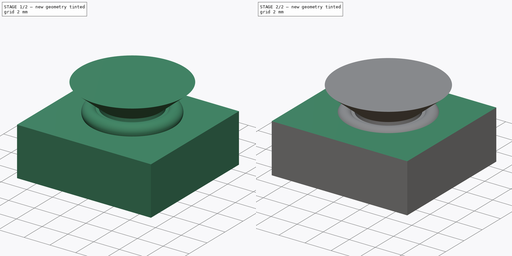
[diagram: build sequence overview — one tinted view per stage of 2, left to right]
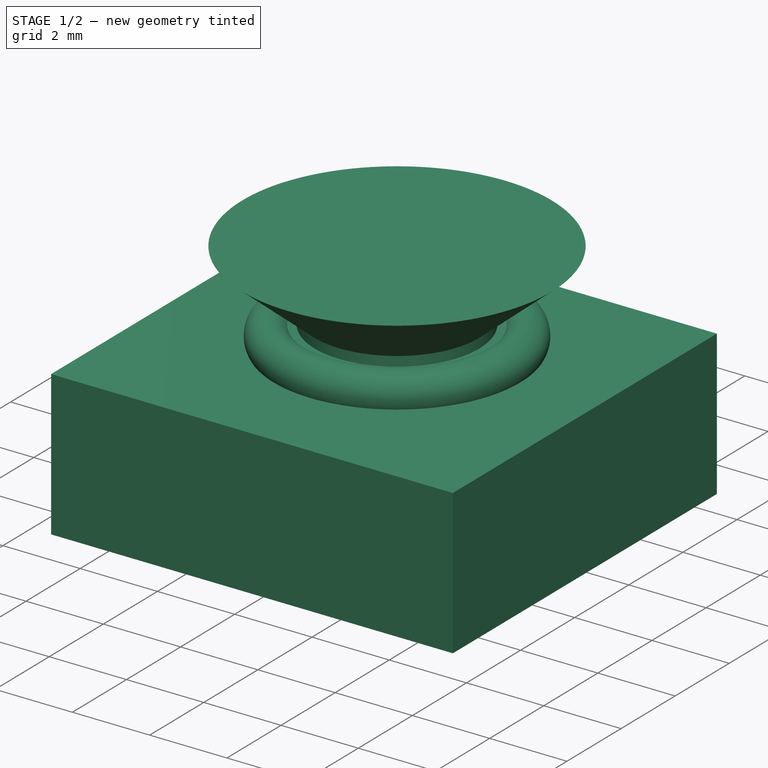
[diagram: stage 1 of 2 — iso view after this stage's code; geometry added in this stage tinted green]
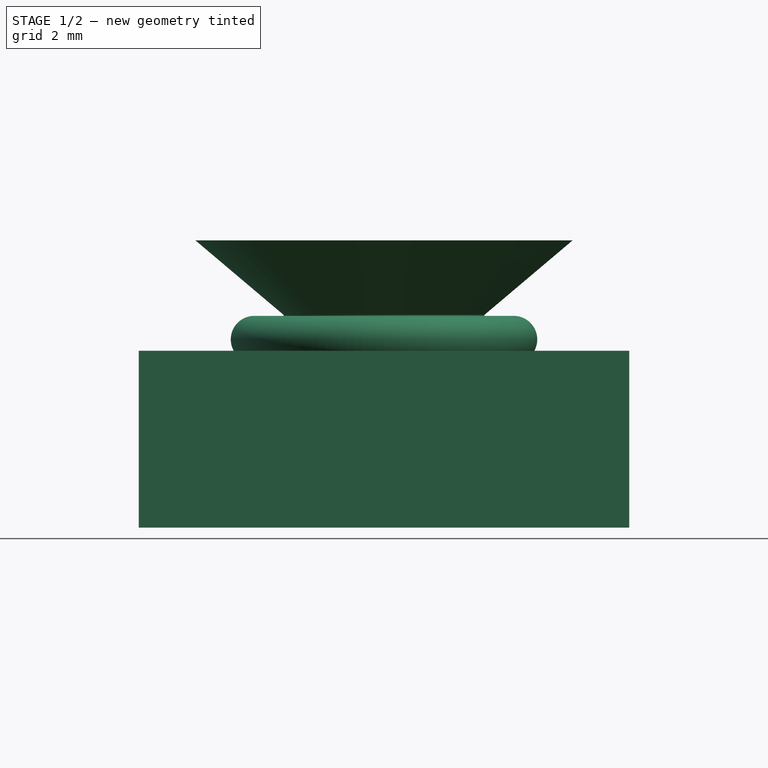
[diagram: stage 1 of 2 — front view after this stage's code; geometry added in this stage tinted green]
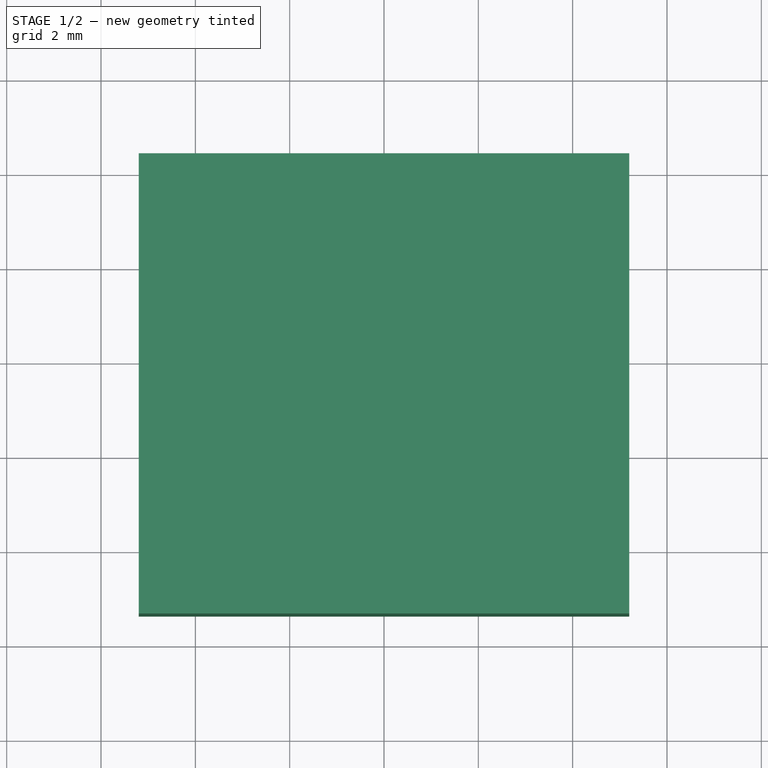
[diagram: stage 1 of 2 — top view after this stage's code; geometry added in this stage tinted green]
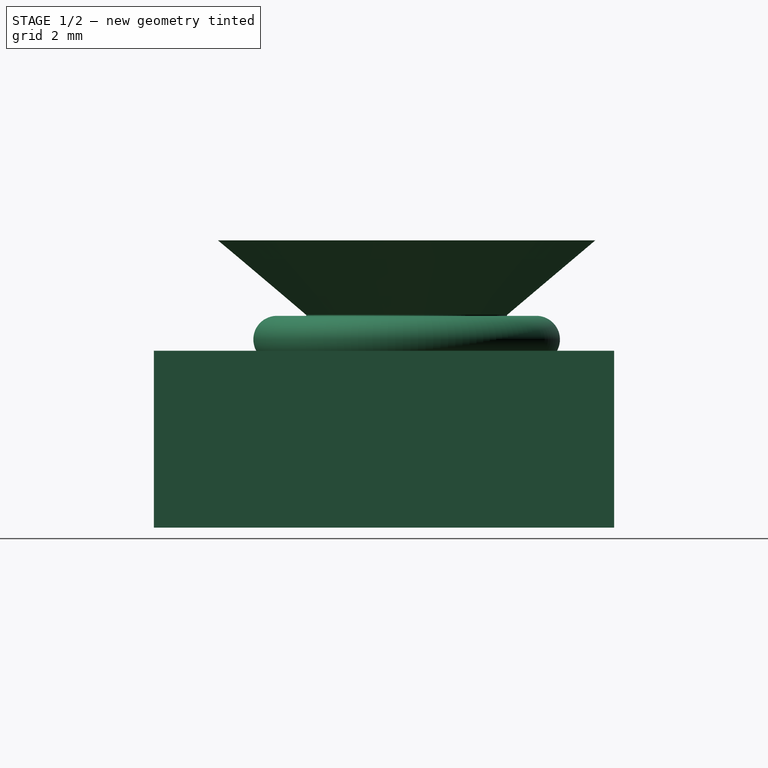
[diagram: stage 1 of 2 — right view after this stage's code; geometry added in this stage tinted green]
FCSTD DOCUMENT  (FreeCAD 0.21R33668 +26 (Git))
Label: sensor_opening_cut_OS
License: All rights reserved
LicenseURL: http://en.wikipedia.org/wiki/All_rights_reserved
objects: Sketcher::SketchObject×2, PartDesign::Body×2, PartDesign::Pad×1, PartDesign::Revolution×1, Part::MultiFuse×1
note: 9 computed .brp shape members not serialized (recipe doc carries the construction recipe); baked Part::Feature solids carry a one-line shape summary decoded from their .brp

FEATURE [Sketcher::SketchObject] Sketch001
  FullyConstrained = true
  MapMode = 5
  Support = -> [XY_Plane001]
  expr: Constraints[9] = .Constraints.x
  sketch-geometry (4):
    g0: LineSegment StartX=-5.2 StartY=4.4 StartZ=0 EndX=5.2 EndY=4.4 EndZ=0
    g1: LineSegment StartX=5.2 StartY=4.4 StartZ=0 EndX=5.2 EndY=-5.36 EndZ=0
    g2: LineSegment StartX=5.2 StartY=-5.36 StartZ=0 EndX=-5.2 EndY=-5.36 EndZ=0
    g3: LineSegment StartX=-5.2 StartY=-5.36 StartZ=0 EndX=-5.2 EndY=4.4 EndZ=0
  constraints (12):
    c: Coincident(g0,g1)
    c: Coincident(g1,g2)
    c: Coincident(g2,g3)
    c: Coincident(g3,g0)
    c: Horizontal(g0)
    c: Horizontal(g2)
    c: Vertical(g1)
    c: Vertical(g3)
    c: DistanceX(g-1,g0) = 5.2  'x'
    c: DistanceX(g0,g-1) = 5.2
    c: DistanceY(g-1,g0) = 4.4
    c: DistanceY(g1,g-1) = 5.36
FEATURE [PartDesign::Pad] Pad
  Direction = (0,0,1)
  Length = 0.75
  Length2 = 3
  Profile = -> Sketch001
  ReferenceAxis = -> Sketch001 [N_Axis]
  Type = 4
FEATURE [PartDesign::Body] Body001  label="IS_mount_box_Cut"
  Group = -> [Sketch001,Pad]
  Origin = -> Origin001
  Placement = pos=(0,0,0.483) rot=(0,0,1;0rad)
  Tip = -> Pad
FEATURE [Sketcher::SketchObject] Sketch006
  FullyConstrained = true
  MapMode = 5
  Placement = pos=(0,0,0) rot=(0.57735,0.57735,0.57735;2.0944rad)
  Support = -> [YZ_Plane006]
  sketch-geometry (7):
    g0: LineSegment StartX=0 StartY=0.49 StartZ=0 EndX=2.75 EndY=0.49 EndZ=0
    g1: ArcOfCircle CenterX=2.75 CenterY=0.99 CenterZ=0 NormalX=0 NormalY=0 NormalZ=1 AngleXU=0 Radius=0.5 StartAngle=4.71239 EndAngle=8.85434
    g2: LineSegment StartX=2.12917 StartY=1.51 StartZ=0 EndX=4 EndY=3.09 EndZ=0
    g3: LineSegment StartX=4 StartY=3.09 StartZ=0 EndX=0 EndY=3.09 EndZ=0
    g4: LineSegment StartX=0 StartY=3.09 StartZ=0 EndX=0 EndY=0.49 EndZ=0
    g5: LineSegment StartX=2.32917 StartY=1.26 StartZ=0 EndX=2.12917 EndY=1.26 EndZ=0
    g6: LineSegment StartX=2.12917 StartY=1.26 StartZ=0 EndX=2.12917 EndY=1.51 EndZ=0
  constraints (22):
    c: PointOnObject(g0,g-2)
    c: Horizontal(g0)
    c: Coincident(g1,g0)
    c: Vertical(g1,g0)
    c: Radius(g1) = 0.5
    c: DistanceX(g0) = 2.75
    c: Coincident(g3,g2)
    c: PointOnObject(g3,g-2)
    c: Horizontal(g3)
    c: DistanceY(g-1,g1) = 0.99
    c: Coincident(g4,g3)
    c: Coincident(g4,g0)
    c: Coincident(g5,g1)
    c: Horizontal(g5)
    c: DistanceX(g5,g5) = 0.2
    c: Coincident(g6,g5)
    c: Coincident(g6,g2)
    c: Vertical(g6)
    c: DistanceX(g-1,g2) = 4
    c: DistanceY(g-1,g2) = 3.09
    c: DistanceY(g6,g6) = 0.25
    c: DistanceY(g-1,g1) = 1.26
FEATURE [PartDesign::Revolution] Revolution
  Angle = 360
  Axis = (-2e-16,3e-16,1)
  Base = (0,0,0)
  Placement = pos=(0,0,0) rot=(0.57735,0.57735,0.57735;2.0944rad)
  Profile = -> Sketch006
  ReferenceAxis = -> Sketch006 [V_Axis]
  Reversed = true
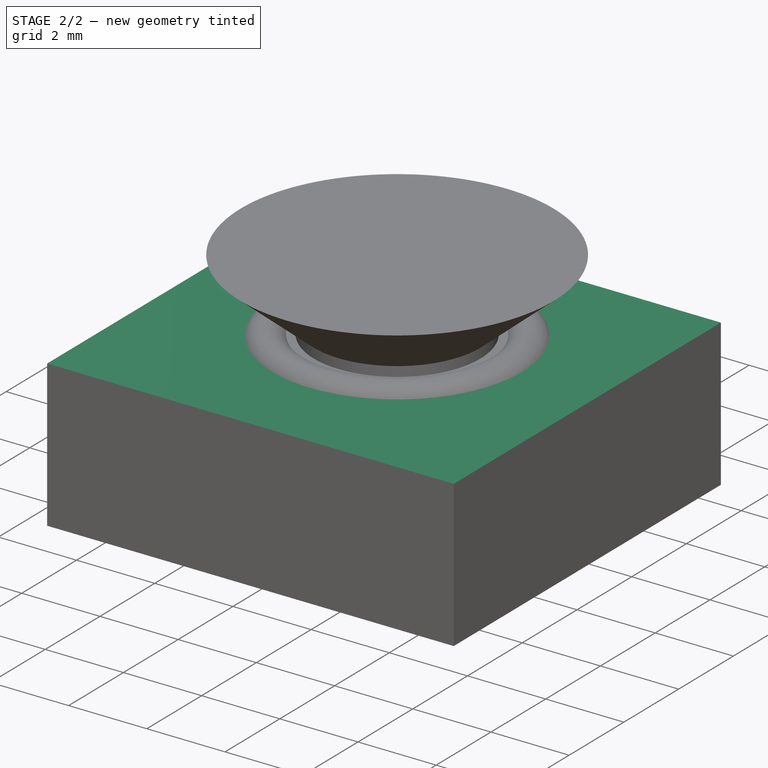
[diagram: stage 2 of 2 — iso view after this stage's code; geometry added in this stage tinted green]
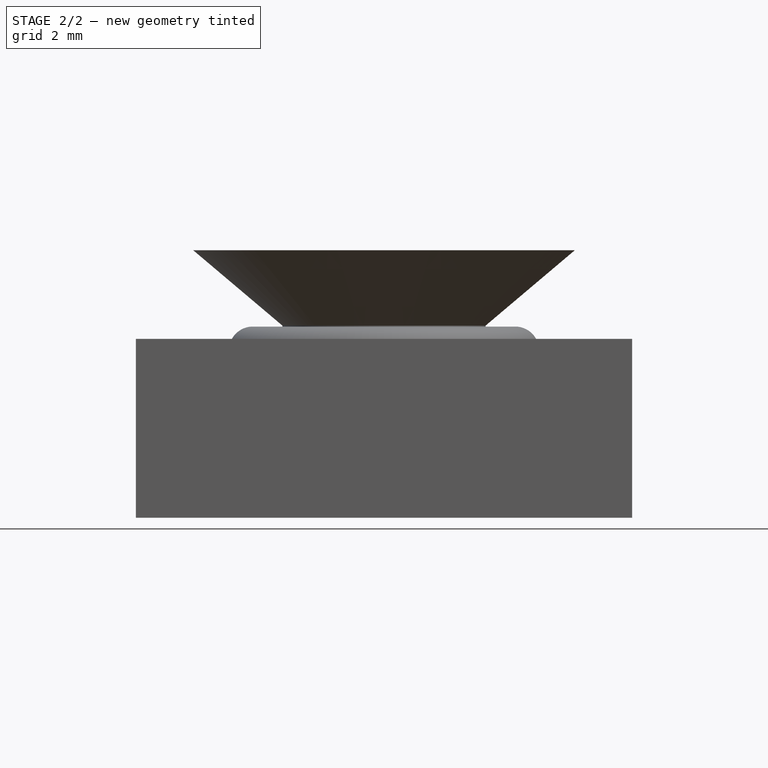
[diagram: stage 2 of 2 — front view after this stage's code; geometry added in this stage tinted green]
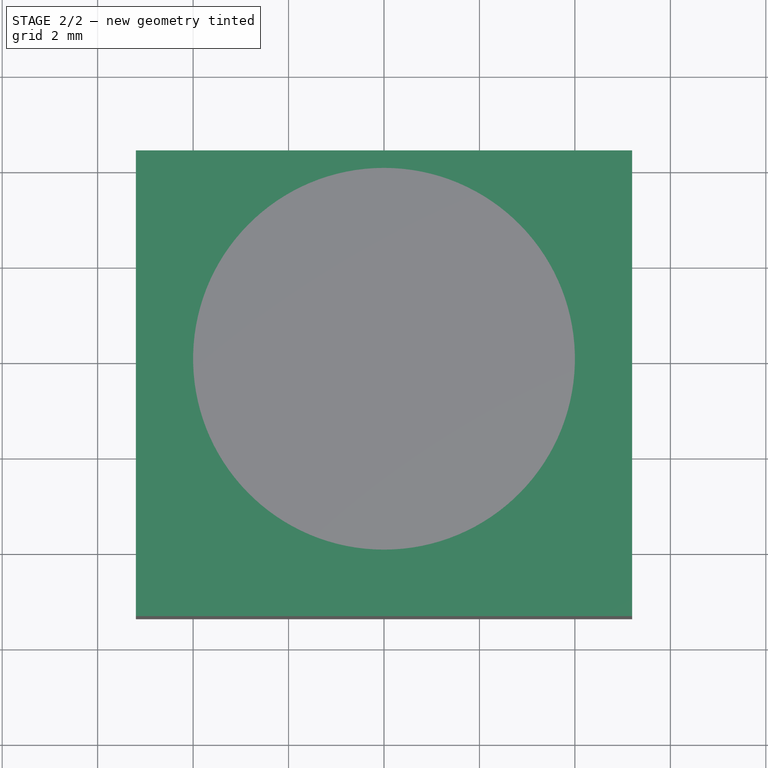
[diagram: stage 2 of 2 — top view after this stage's code; geometry added in this stage tinted green]
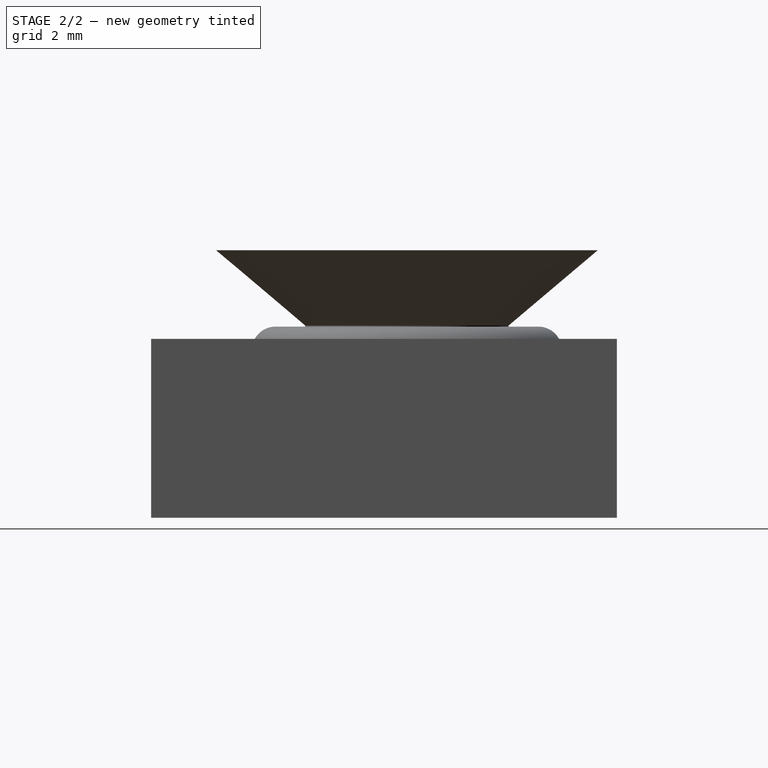
[diagram: stage 2 of 2 — right view after this stage's code; geometry added in this stage tinted green]
FEATURE [PartDesign::Body] Body006  label="opening_revolve"
  Group = -> [Sketch006,Revolution]
  Origin = -> Origin006
  Tip = -> Revolution
FEATURE [Part::MultiFuse] Fusion
  Shapes = -> [Body001,Body006]
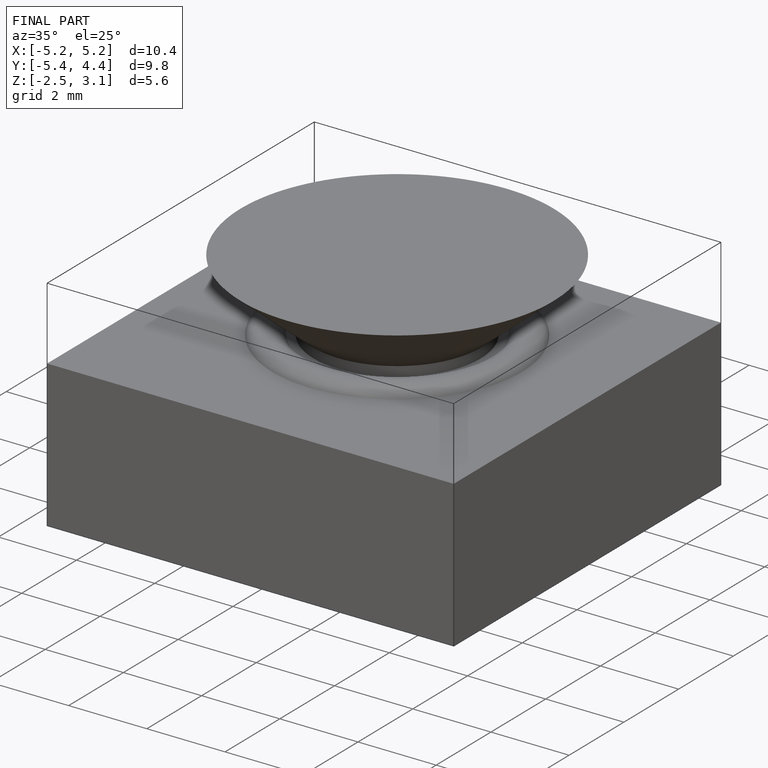
[diagram: finished part — iso view with bounding-box wireframe]
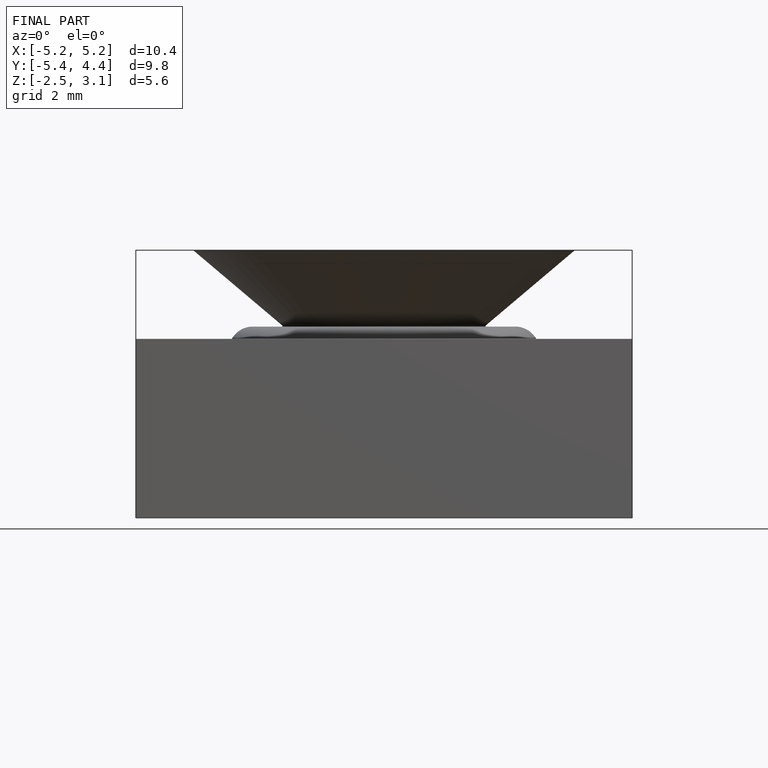
[diagram: finished part — front view with bounding-box wireframe]
